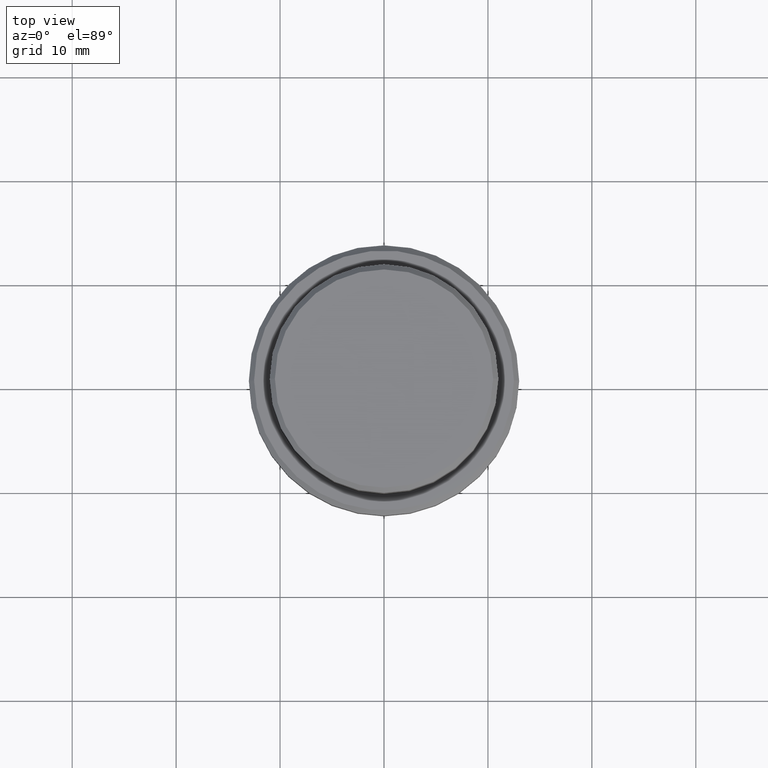
[diagram: clean part render]
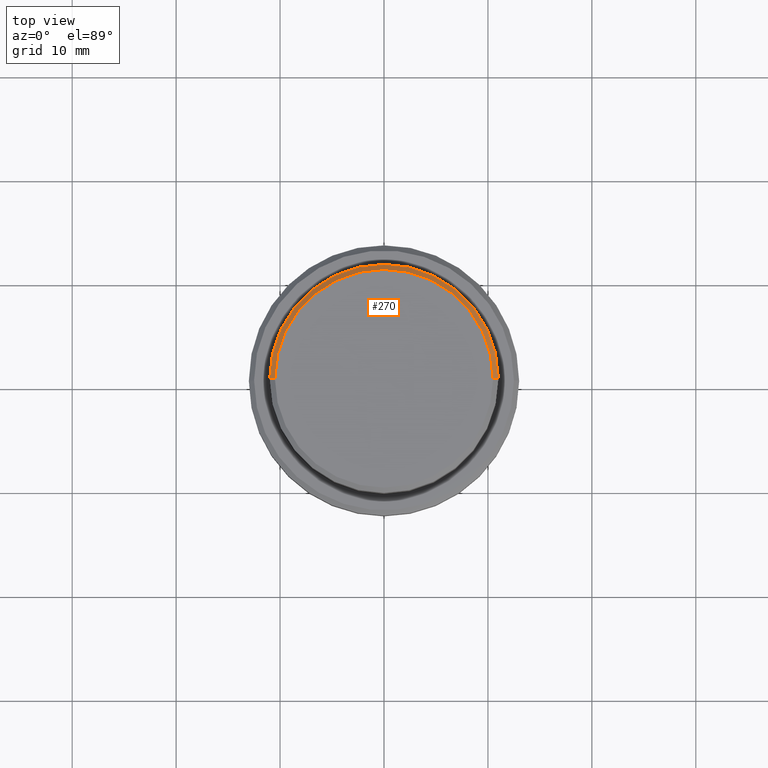
[diagram: same view with one face highlighted and labeled with its STEP entity id]
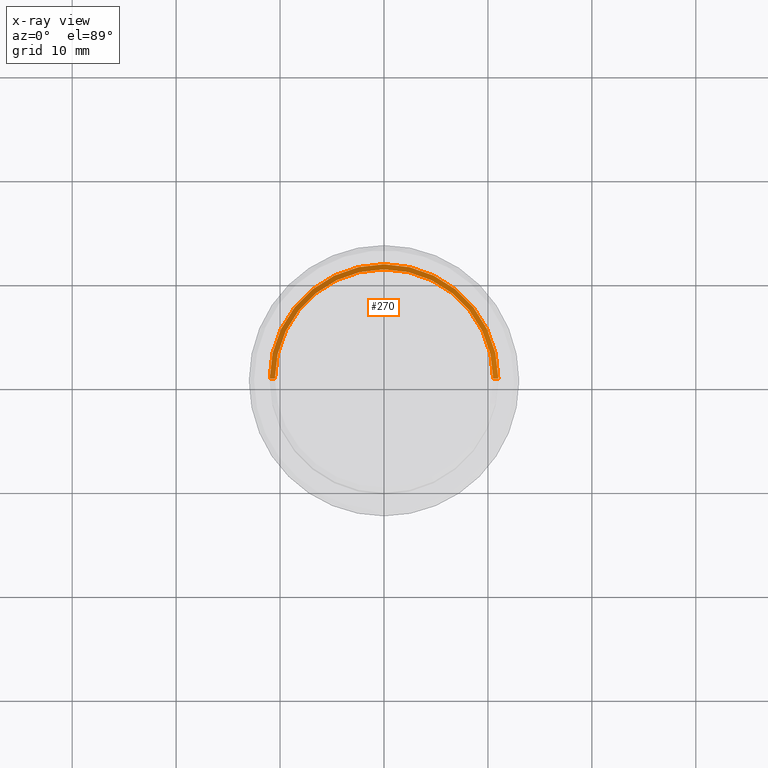
[diagram: x-ray of the same camera — body ghosted, the highlighted face saturated]
A machine part, top view. The second image highlights one B-rep face of the part: STEP entity #270.
The next image is the same camera in x-ray: the body ghosted, the highlighted face saturated — about 0% of this face is hidden behind the body in this view.
In plain terms, the highlighted conical surface has half-angle 45 deg.
Its self-contained STEP definition (entity closure, byte-faithful):
#38 = AXIS2_PLACEMENT_3D ( 'NONE', #1246, #1355, #812 ) ;
#50 = VERTEX_POINT ( 'NONE', #1085 ) ;
#65 = CIRCLE ( 'NONE', #181, 10.99999999999998757 ) ;
#70 = VERTEX_POINT ( 'NONE', #338 ) ;
#155 = AXIS2_PLACEMENT_3D ( 'NONE', #1276, #432, #1310 ) ;
#157 = CARTESIAN_POINT ( 'NONE',  ( -10.50000000000000888, 0.000000000000000000, 0.000000000000000000 ) ) ;
#181 = AXIS2_PLACEMENT_3D ( 'NONE', #370, #1166, #1334 ) ;
#202 = EDGE_CURVE ( 'NONE', #1101, #70, #268, .T. ) ;
#268 = LINE ( 'NONE', #157, #387 ) ;
#270 = ADVANCED_FACE ( 'NONE', ( #806 ), #320, .T. ) ;
#291 = EDGE_LOOP ( 'NONE', ( #1353, #1004, #1074, #702 ) ) ;
#320 = CONICAL_SURFACE ( 'NONE', #38, 10.50000000000000888, 0.7853981633974447263 ) ;
#338 = CARTESIAN_POINT ( 'NONE',  ( -10.99999999999998757, 1.347111479062086827E-15, -0.4999999999999813483 ) ) ;
#370 = CARTESIAN_POINT ( 'NONE',  ( 0.000000000000000000, 0.000000000000000000, -0.4999999999999813483 ) ) ;
#387 = VECTOR ( 'NONE', #580, 1000.000000000000114 ) ;
#432 = DIRECTION ( 'NONE',  ( -0.000000000000000000, -0.000000000000000000, 1.000000000000000000 ) ) ;
#465 = EDGE_CURVE ( 'NONE', #1378, #1101, #886, .T. ) ;
#524 = CARTESIAN_POINT ( 'NONE',  ( 10.50000000000000888, 1.285879139104722014E-15, 0.000000000000000000 ) ) ;
#580 = DIRECTION ( 'NONE',  ( -0.7071067811865451302, 0.000000000000000000, -0.7071067811865500152 ) ) ;
#584 = EDGE_CURVE ( 'NONE', #1378, #50, #1176, .T. ) ;
#702 = ORIENTED_EDGE ( 'NONE', *, *, #202, .F. ) ;
#711 = CARTESIAN_POINT ( 'NONE',  ( 10.50000000000000888, 1.316495309083404420E-15, 0.000000000000000000 ) ) ;
#806 = FACE_OUTER_BOUND ( 'NONE', #291, .T. ) ;
#812 = DIRECTION ( 'NONE',  ( -1.000000000000000000, 0.000000000000000000, 0.000000000000000000 ) ) ;
#886 = CIRCLE ( 'NONE', #155, 10.50000000000000888 ) ;
#1004 = ORIENTED_EDGE ( 'NONE', *, *, #584, .T. ) ;
#1074 = ORIENTED_EDGE ( 'NONE', *, *, #1118, .F. ) ;
#1085 = CARTESIAN_POINT ( 'NONE',  ( 10.99999999999998757, 0.000000000000000000, -0.4999999999999813483 ) ) ;
#1101 = VERTEX_POINT ( 'NONE', #1251 ) ;
#1118 = EDGE_CURVE ( 'NONE', #70, #50, #65, .T. ) ;
#1166 = DIRECTION ( 'NONE',  ( 0.000000000000000000, 0.000000000000000000, -1.000000000000000000 ) ) ;
#1176 = LINE ( 'NONE', #524, #1365 ) ;
#1184 = DIRECTION ( 'NONE',  ( 0.7071067811865451302, 8.659560562354903276E-17, -0.7071067811865500152 ) ) ;
#1246 = CARTESIAN_POINT ( 'NONE',  ( 0.000000000000000000, 0.000000000000000000, 0.000000000000000000 ) ) ;
#1251 = CARTESIAN_POINT ( 'NONE',  ( -10.50000000000000888, 0.000000000000000000, 0.000000000000000000 ) ) ;
#1276 = CARTESIAN_POINT ( 'NONE',  ( 0.000000000000000000, 0.000000000000000000, 0.000000000000000000 ) ) ;
#1310 = DIRECTION ( 'NONE',  ( 1.000000000000000000, 0.000000000000000000, 0.000000000000000000 ) ) ;
#1334 = DIRECTION ( 'NONE',  ( 1.000000000000000000, 0.000000000000000000, 0.000000000000000000 ) ) ;
#1353 = ORIENTED_EDGE ( 'NONE', *, *, #465, .F. ) ;
#1355 = DIRECTION ( 'NONE',  ( 0.000000000000000000, 0.000000000000000000, -1.000000000000000000 ) ) ;
#1365 = VECTOR ( 'NONE', #1184, 1000.000000000000114 ) ;
#1378 = VERTEX_POINT ( 'NONE', #711 ) ;